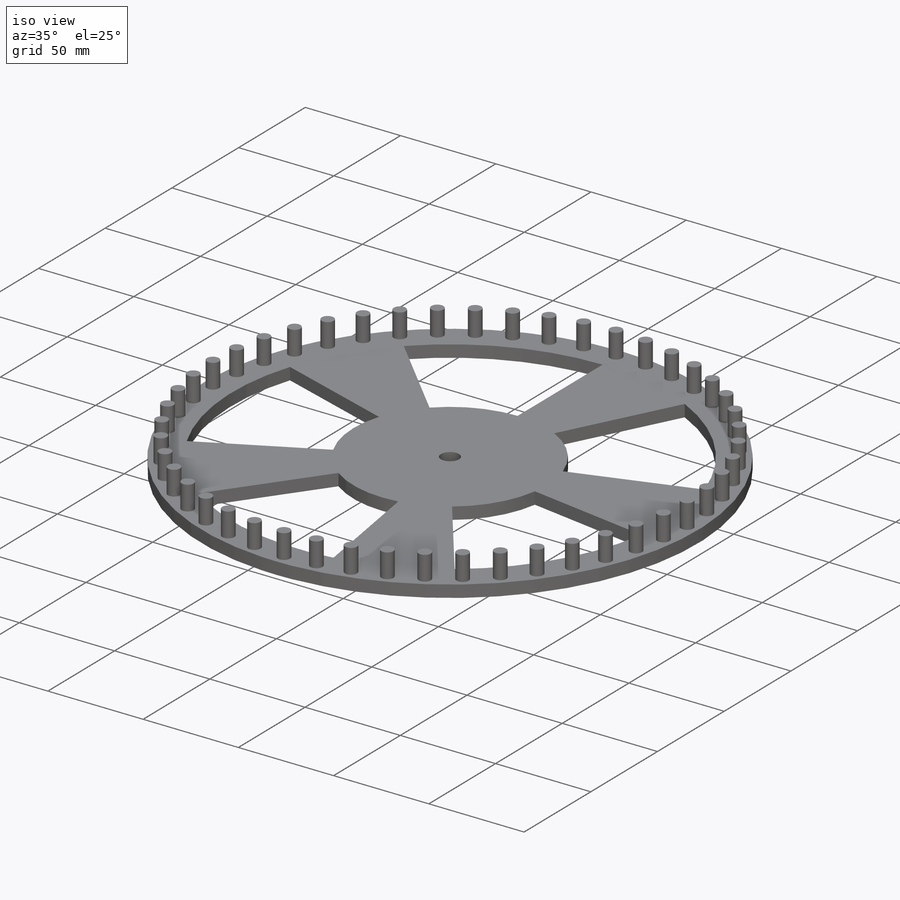
[diagram: iso view]
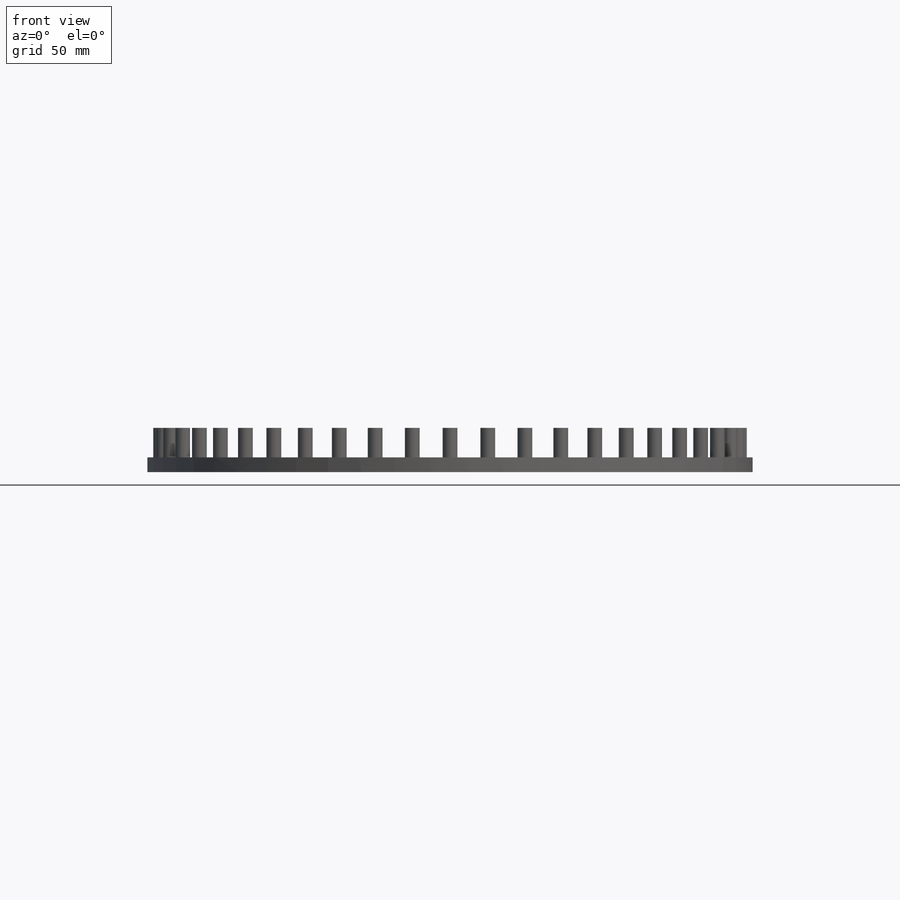
[diagram: front view]
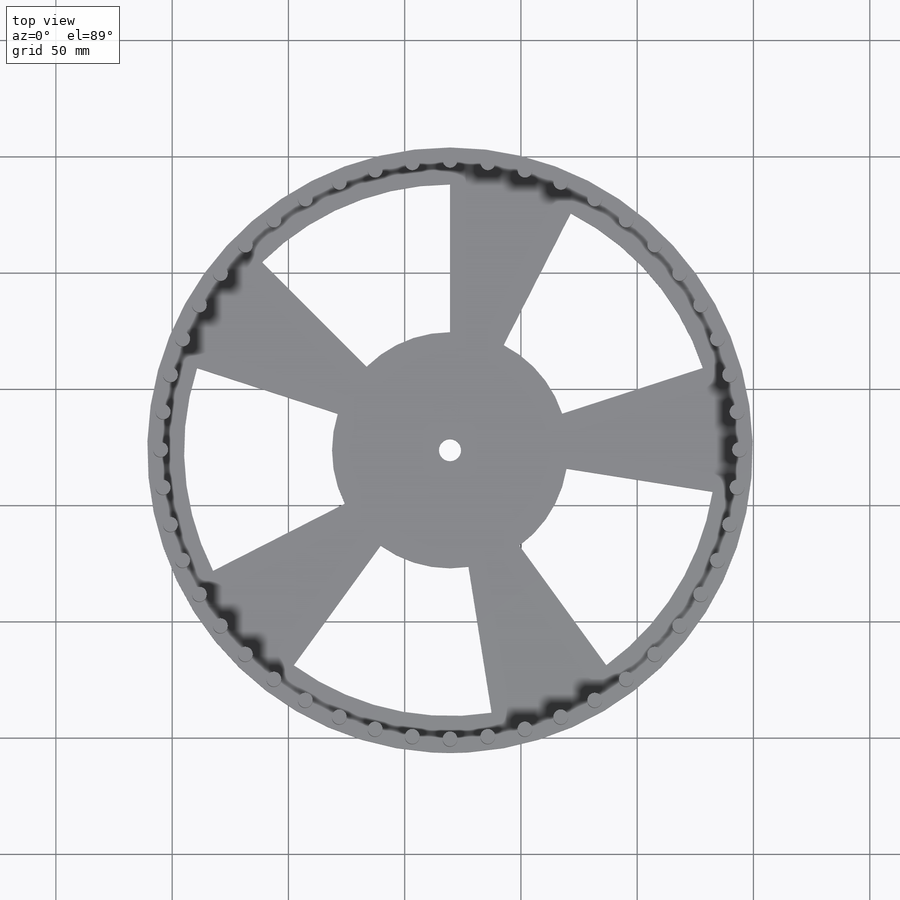
[diagram: top view]
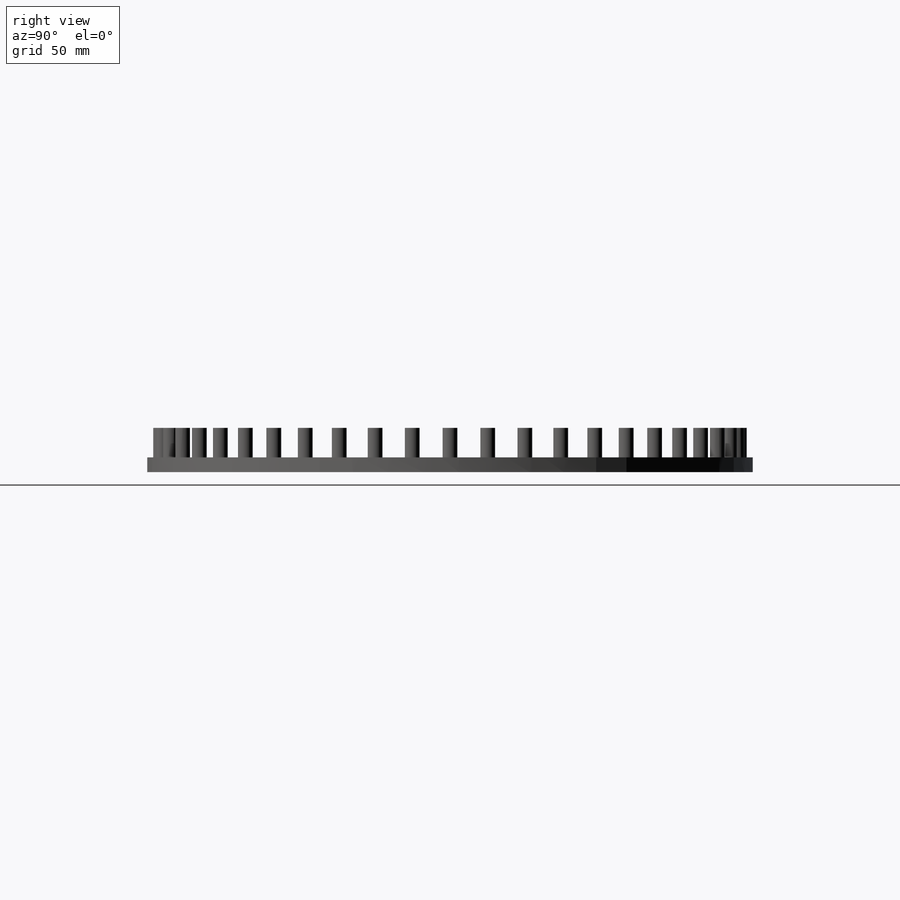
[diagram: right view]
SOLIDWORKS PART (.sldprt)
format: sldprt  version: not decoded by parser v0  size: 315,392 bytes
history: native  units: mm
features: sketch x4, extrude x2, cut_extrude x2, pattern_circular x2, material x1 (+17 scaffold rows collapsed)
feature tree (28):
  scaffold x17  (default folders/planes/origin — collapsed)
  material  "Material <not specified>"
  sketch  "Sketch1"  dims[D1=260.35mm]
  extrude  "Extrude1"  Depth=6.35mm
  sketch  "Sketch2"  dims[c1.D1=248.92mm c1.D2=6.35mm c1.D3=3.175mm c1.D4=9.525mm c2.D1=149.16deg]
  sketch  "Sketch3"  dims[D1=9.525mm]
  cut_extrude  "Extrude3"  Depth=6.35mm
  extrude  "Extrude4"  Depth=12.7mm
  pattern_circular  "CirPattern1"  Count=48 Angle=360deg
  sketch  "Sketch5"
  cut_extrude  "Extrude5"  Depth=19.05mm
  pattern_circular  "CirPattern2"  Count=5 Angle=360deg
decode coverage: 9 of 10 modeling features carry decoded parameters
note: suppression state not decoded; provenance and decode notes live in map.json
